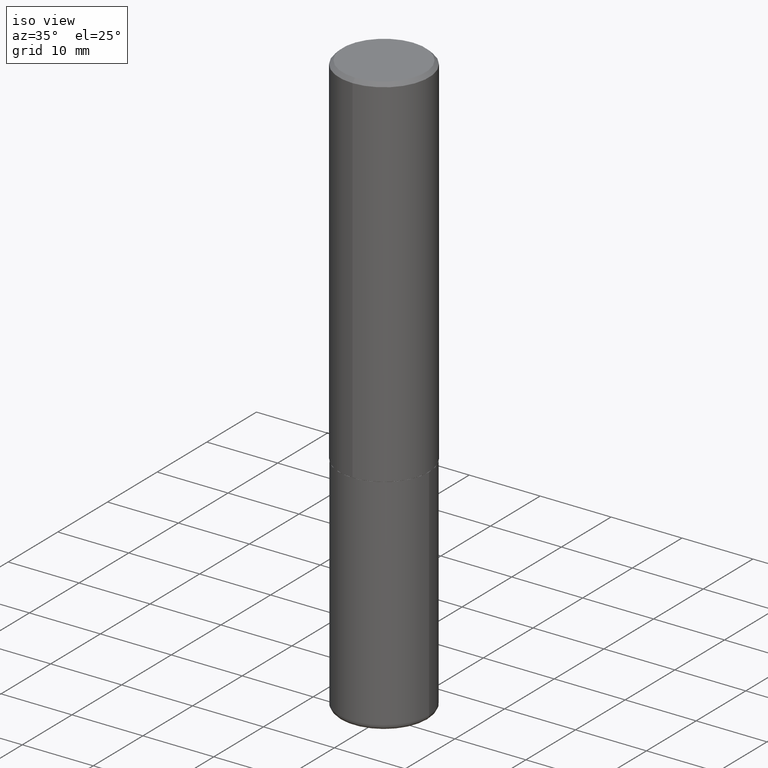
[diagram: clean part render]
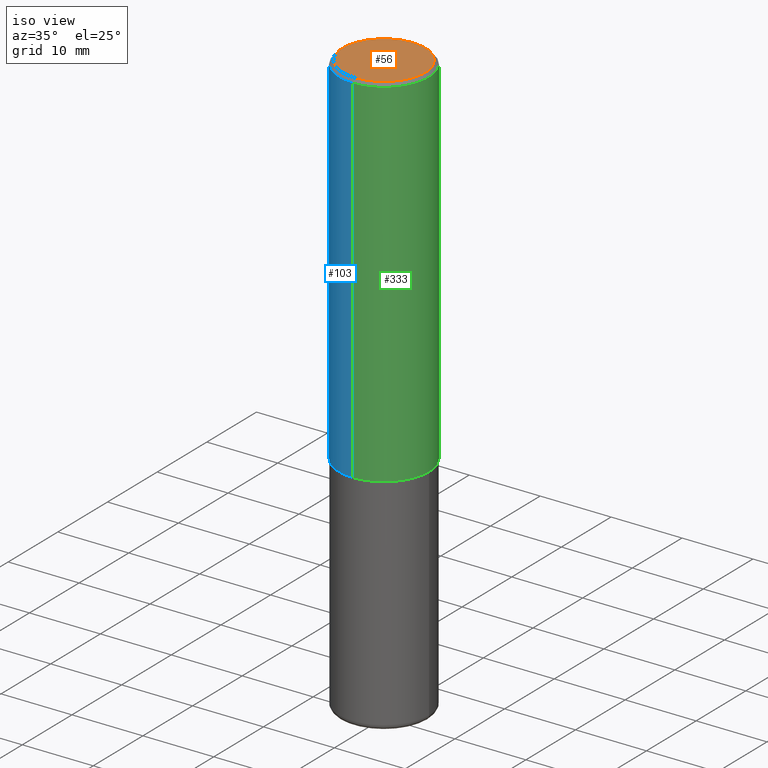
[diagram: same view with three faces highlighted in distinct colors, each labeled with its STEP entity id]
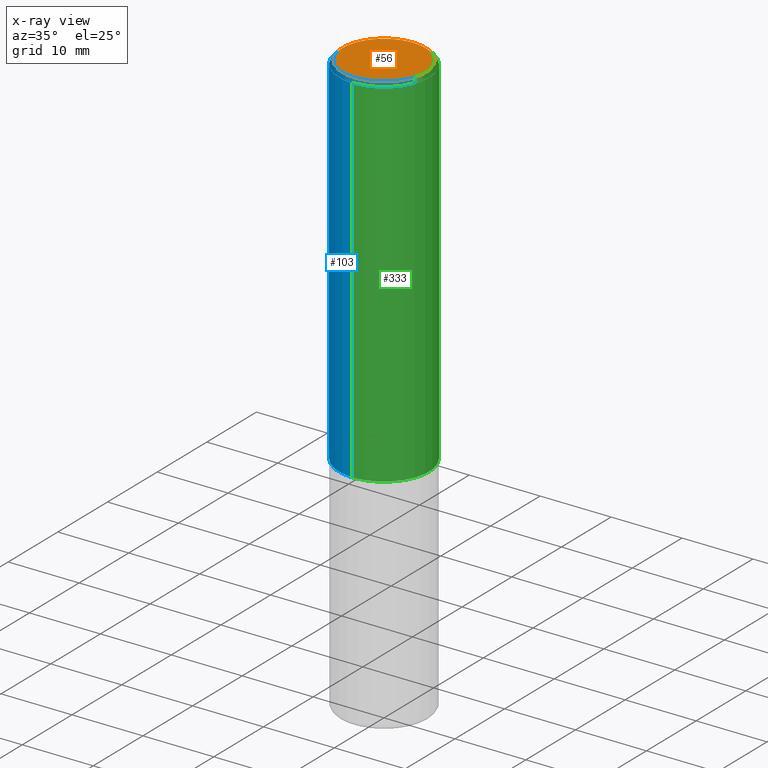
[diagram: x-ray of the same camera — body ghosted, the three highlighted faces saturated]
A machine part, iso view with three faces highlighted in distinct colors.
The next image is the same camera in x-ray (body ghosted, the three faces saturated) — at least one of them is partly hidden behind the body in this view.
Their STEP definitions:

[orange] entity #56 — the highlighted planar face has unit normal (0, -0, -1).
#2 = PLANE ( 'NONE',  #59 ) ;
#10 = EDGE_CURVE ( 'NONE', #130, #390, #146, .T. ) ;
#48 = AXIS2_PLACEMENT_3D ( 'NONE', #291, #226, #137 ) ;
#56 = ADVANCED_FACE ( 'NONE', ( #293 ), #2, .F. ) ;
#59 = AXIS2_PLACEMENT_3D ( 'NONE', #229, #363, #360 ) ;
#69 = ORIENTED_EDGE ( 'NONE', *, *, #122, .T. ) ;
#122 = EDGE_CURVE ( 'NONE', #390, #130, #244, .T. ) ;
#130 = VERTEX_POINT ( 'NONE', #181 ) ;
#137 = DIRECTION ( 'NONE',  ( -6.982962677686265922E-15, -1.000000000000000000, 3.493471632758652550E-15 ) ) ;
#146 = CIRCLE ( 'NONE', #48, 0.2299999999999997047 ) ;
#159 = EDGE_LOOP ( 'NONE', ( #69, #283 ) ) ;
#180 = DIRECTION ( 'NONE',  ( -2.444078991372175563E-29, 3.493471632758652550E-15, 1.000000000000000000 ) ) ;
#181 = CARTESIAN_POINT ( 'NONE',  ( -1.646519519465166376E-15, -0.2299999999999997047, 1.115557654912385711E-15 ) ) ;
#226 = DIRECTION ( 'NONE',  ( -2.444078991372175563E-29, 3.493471632758652550E-15, 1.000000000000000000 ) ) ;
#229 = CARTESIAN_POINT ( 'NONE',  ( 1.606081415867839095E-15, 0.2299999999999997047, -6.474688858455407103E-16 ) ) ;
#241 = CARTESIAN_POINT ( 'NONE',  ( -7.626972843823584403E-45, 1.090169890898625670E-30, 3.120591793778966343E-16 ) ) ;
#244 = CIRCLE ( 'NONE', #372, 0.2299999999999997047 ) ;
#276 = DIRECTION ( 'NONE',  ( -6.982962677686265922E-15, -1.000000000000000000, 3.493471632758652550E-15 ) ) ;
#283 = ORIENTED_EDGE ( 'NONE', *, *, #10, .T. ) ;
#291 = CARTESIAN_POINT ( 'NONE',  ( -7.626972843823584403E-45, 1.090169890898625670E-30, 3.120591793778966343E-16 ) ) ;
#293 = FACE_OUTER_BOUND ( 'NONE', #159, .T. ) ;
#360 = DIRECTION ( 'NONE',  ( 6.982962677686265922E-15, 1.000000000000000000, -3.493471632758652550E-15 ) ) ;
#363 = DIRECTION ( 'NONE',  ( 2.444078991372175283E-29, -3.493471632758652550E-15, -1.000000000000000000 ) ) ;
#372 = AXIS2_PLACEMENT_3D ( 'NONE', #241, #180, #276 ) ;
#390 = VERTEX_POINT ( 'NONE', #414 ) ;
#414 = CARTESIAN_POINT ( 'NONE',  ( 1.675911042644703182E-15, 0.2299999999999997047, -4.914392961565924424E-16 ) ) ;

[blue] entity #103 — the highlighted cylindrical surface (partial cylindrical patch) has radius 6.35 mm, axis along (-0, 0, 1).
#35 = ORIENTED_EDGE ( 'NONE', *, *, #313, .F. ) ;
#37 = VERTEX_POINT ( 'NONE', #178 ) ;
#46 = EDGE_CURVE ( 'NONE', #222, #37, #295, .T. ) ;
#52 = CARTESIAN_POINT ( 'NONE',  ( 1.776356839400276103E-15, 0.2499999999999932832, -1.999000000000000776 ) ) ;
#61 = ORIENTED_EDGE ( 'NONE', *, *, #46, .T. ) ;
#62 = CARTESIAN_POINT ( 'NONE',  ( 4.885713903752978284E-29, -6.983449793884546288E-15, -1.998999999999999888 ) ) ;
#66 = DIRECTION ( 'NONE',  ( -2.444078991372175563E-29, 3.493471632758652550E-15, 1.000000000000000000 ) ) ;
#90 = DIRECTION ( 'NONE',  ( -2.444078991372175563E-29, 3.493471632758652550E-15, 1.000000000000000000 ) ) ;
#94 = DIRECTION ( 'NONE',  ( -2.444078991372175563E-29, 3.493471632758652550E-15, 1.000000000000000000 ) ) ;
#98 = ORIENTED_EDGE ( 'NONE', *, *, #403, .T. ) ;
#100 = VERTEX_POINT ( 'NONE', #52 ) ;
#103 = ADVANCED_FACE ( 'NONE', ( #328 ), #144, .T. ) ;
#106 = EDGE_LOOP ( 'NONE', ( #35, #98, #61, #131 ) ) ;
#118 = AXIS2_PLACEMENT_3D ( 'NONE', #62, #94, #354 ) ;
#131 = ORIENTED_EDGE ( 'NONE', *, *, #394, .F. ) ;
#144 = CYLINDRICAL_SURFACE ( 'NONE', #365, 0.2500000000000001110 ) ;
#154 = CARTESIAN_POINT ( 'NONE',  ( 1.745740669421567269E-15, 0.2499999999999999722, -0.02000000000000096492 ) ) ;
#156 = CARTESIAN_POINT ( 'NONE',  ( 0.000000000000000000, 0.000000000000000000, 0.000000000000000000 ) ) ;
#178 = CARTESIAN_POINT ( 'NONE',  ( -1.715124499442882496E-15, -0.2500000000000001110, -0.01999999999999921632 ) ) ;
#189 = VERTEX_POINT ( 'NONE', #154 ) ;
#213 = AXIS2_PLACEMENT_3D ( 'NONE', #249, #221, #378 ) ;
#221 = DIRECTION ( 'NONE',  ( -2.444078991372175563E-29, 3.493471632758652550E-15, 1.000000000000000000 ) ) ;
#222 = VERTEX_POINT ( 'NONE', #243 ) ;
#228 = LINE ( 'NONE', #359, #398 ) ;
#243 = CARTESIAN_POINT ( 'NONE',  ( -1.745740669421519543E-15, -0.2500000000000072720, -1.998999999999999000 ) ) ;
#249 = CARTESIAN_POINT ( 'NONE',  ( 4.888157982744373443E-31, -6.986943265517335816E-17, -0.02000000000000009062 ) ) ;
#254 = DIRECTION ( 'NONE',  ( -2.444078991372175563E-29, 3.493471632758652550E-15, 1.000000000000000000 ) ) ;
#295 = LINE ( 'NONE', #358, #332 ) ;
#301 = CIRCLE ( 'NONE', #213, 0.2500000000000000555 ) ;
#313 = EDGE_CURVE ( 'NONE', #100, #189, #228, .T. ) ;
#328 = FACE_OUTER_BOUND ( 'NONE', #106, .T. ) ;
#332 = VECTOR ( 'NONE', #66, 39.37007874015748143 ) ;
#338 = DIRECTION ( 'NONE',  ( -6.982962677686266711E-15, -1.000000000000000000, 3.493471632758652550E-15 ) ) ;
#354 = DIRECTION ( 'NONE',  ( -6.982962677686265922E-15, -1.000000000000000000, 3.278217592397112312E-15 ) ) ;
#358 = CARTESIAN_POINT ( 'NONE',  ( -1.745740669421567467E-15, -0.2500000000000001110, 8.733679081896635319E-16 ) ) ;
#359 = CARTESIAN_POINT ( 'NONE',  ( 1.776356839400251254E-15, 0.2500000000000001110, -8.733679081896635319E-16 ) ) ;
#365 = AXIS2_PLACEMENT_3D ( 'NONE', #156, #90, #338 ) ;
#378 = DIRECTION ( 'NONE',  ( -6.982962677686265133E-15, -1.000000000000000000, 3.500180241882336472E-15 ) ) ;
#391 = CIRCLE ( 'NONE', #118, 0.2500000000000002776 ) ;
#394 = EDGE_CURVE ( 'NONE', #189, #37, #301, .T. ) ;
#398 = VECTOR ( 'NONE', #254, 39.37007874015748143 ) ;
#403 = EDGE_CURVE ( 'NONE', #100, #222, #391, .T. ) ;

[green] entity #333 — the highlighted cylindrical surface (partial cylindrical patch) has radius 6.35 mm, axis along (-0, 0, 1).
#7 = CIRCLE ( 'NONE', #102, 0.2500000000000000555 ) ;
#37 = VERTEX_POINT ( 'NONE', #178 ) ;
#46 = EDGE_CURVE ( 'NONE', #222, #37, #295, .T. ) ;
#51 = CARTESIAN_POINT ( 'NONE',  ( 4.885713903752978284E-29, -6.983449793884546288E-15, -1.998999999999999888 ) ) ;
#52 = CARTESIAN_POINT ( 'NONE',  ( 1.776356839400276103E-15, 0.2499999999999932832, -1.999000000000000776 ) ) ;
#66 = DIRECTION ( 'NONE',  ( -2.444078991372175563E-29, 3.493471632758652550E-15, 1.000000000000000000 ) ) ;
#79 = ORIENTED_EDGE ( 'NONE', *, *, #155, .T. ) ;
#83 = AXIS2_PLACEMENT_3D ( 'NONE', #197, #362, #132 ) ;
#99 = FACE_OUTER_BOUND ( 'NONE', #382, .T. ) ;
#100 = VERTEX_POINT ( 'NONE', #52 ) ;
#102 = AXIS2_PLACEMENT_3D ( 'NONE', #224, #279, #324 ) ;
#124 = AXIS2_PLACEMENT_3D ( 'NONE', #51, #306, #212 ) ;
#132 = DIRECTION ( 'NONE',  ( -6.982962677686266711E-15, -1.000000000000000000, 3.493471632758652550E-15 ) ) ;
#154 = CARTESIAN_POINT ( 'NONE',  ( 1.745740669421567269E-15, 0.2499999999999999722, -0.02000000000000096492 ) ) ;
#155 = EDGE_CURVE ( 'NONE', #222, #100, #300, .T. ) ;
#170 = ORIENTED_EDGE ( 'NONE', *, *, #340, .F. ) ;
#178 = CARTESIAN_POINT ( 'NONE',  ( -1.715124499442882496E-15, -0.2500000000000001110, -0.01999999999999921632 ) ) ;
#189 = VERTEX_POINT ( 'NONE', #154 ) ;
#193 = ORIENTED_EDGE ( 'NONE', *, *, #313, .T. ) ;
#195 = CYLINDRICAL_SURFACE ( 'NONE', #83, 0.2500000000000001110 ) ;
#197 = CARTESIAN_POINT ( 'NONE',  ( 0.000000000000000000, 0.000000000000000000, 0.000000000000000000 ) ) ;
#212 = DIRECTION ( 'NONE',  ( -6.982962677686265922E-15, -1.000000000000000000, 3.278217592397112312E-15 ) ) ;
#222 = VERTEX_POINT ( 'NONE', #243 ) ;
#224 = CARTESIAN_POINT ( 'NONE',  ( 4.888157982744373443E-31, -6.986943265517335816E-17, -0.02000000000000009062 ) ) ;
#228 = LINE ( 'NONE', #359, #398 ) ;
#243 = CARTESIAN_POINT ( 'NONE',  ( -1.745740669421519543E-15, -0.2500000000000072720, -1.998999999999999000 ) ) ;
#254 = DIRECTION ( 'NONE',  ( -2.444078991372175563E-29, 3.493471632758652550E-15, 1.000000000000000000 ) ) ;
#255 = ORIENTED_EDGE ( 'NONE', *, *, #46, .F. ) ;
#279 = DIRECTION ( 'NONE',  ( -2.444078991372175563E-29, 3.493471632758652550E-15, 1.000000000000000000 ) ) ;
#295 = LINE ( 'NONE', #358, #332 ) ;
#300 = CIRCLE ( 'NONE', #124, 0.2500000000000002776 ) ;
#306 = DIRECTION ( 'NONE',  ( -2.444078991372175563E-29, 3.493471632758652550E-15, 1.000000000000000000 ) ) ;
#313 = EDGE_CURVE ( 'NONE', #100, #189, #228, .T. ) ;
#324 = DIRECTION ( 'NONE',  ( -6.982962677686265133E-15, -1.000000000000000000, 3.500180241882336472E-15 ) ) ;
#332 = VECTOR ( 'NONE', #66, 39.37007874015748143 ) ;
#333 = ADVANCED_FACE ( 'NONE', ( #99 ), #195, .T. ) ;
#340 = EDGE_CURVE ( 'NONE', #37, #189, #7, .T. ) ;
#358 = CARTESIAN_POINT ( 'NONE',  ( -1.745740669421567467E-15, -0.2500000000000001110, 8.733679081896635319E-16 ) ) ;
#359 = CARTESIAN_POINT ( 'NONE',  ( 1.776356839400251254E-15, 0.2500000000000001110, -8.733679081896635319E-16 ) ) ;
#362 = DIRECTION ( 'NONE',  ( -2.444078991372175563E-29, 3.493471632758652550E-15, 1.000000000000000000 ) ) ;
#382 = EDGE_LOOP ( 'NONE', ( #79, #193, #170, #255 ) ) ;
#398 = VECTOR ( 'NONE', #254, 39.37007874015748143 ) ;